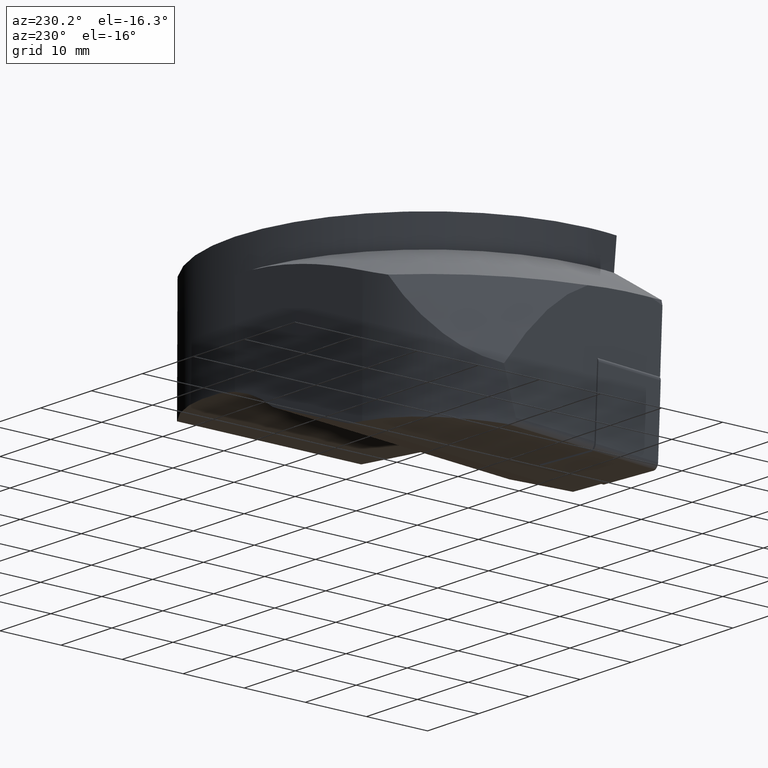
[diagram: clean part render]
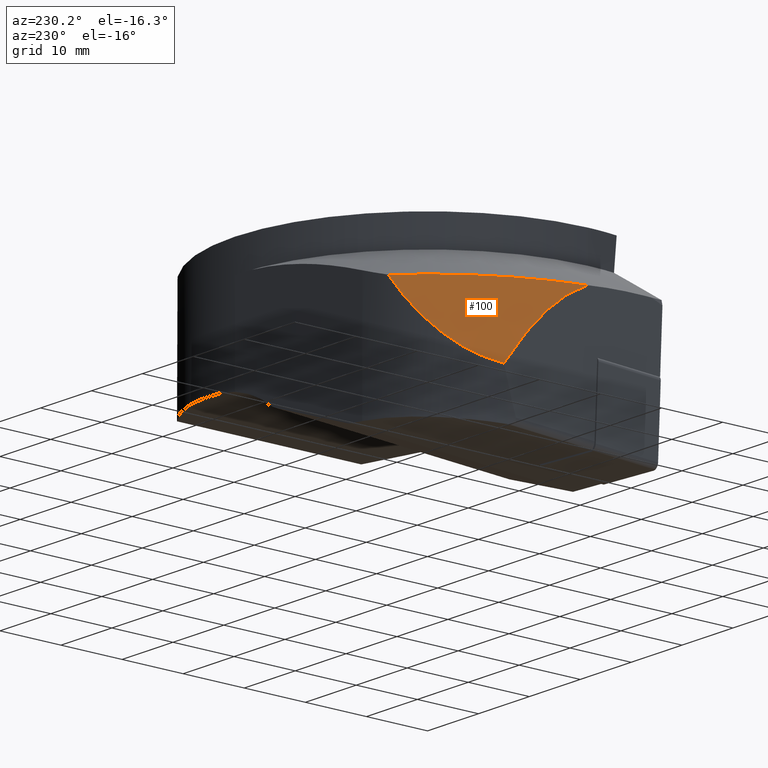
[diagram: same view with one face highlighted and labeled with its STEP entity id]
A machine part, auxiliary view. The second image highlights one B-rep face of the part: STEP entity #100.
In plain terms, the highlighted conical surface has half-angle 20 deg.
Its self-contained STEP definition (entity closure, byte-faithful):
#100=ADVANCED_FACE('',(#158),#159,.T.);
#158=FACE_OUTER_BOUND('',#222,.T.);
#159=CONICAL_SURFACE('',#223,43.4193818987798,0.349065849601138);
#222=EDGE_LOOP('',(#454,#455,#456));
#223=AXIS2_PLACEMENT_3D('',#457,#458,#459);
#454=ORIENTED_EDGE('',*,*,#546,.F.);
#455=ORIENTED_EDGE('',*,*,#583,.F.);
#456=ORIENTED_EDGE('',*,*,#569,.F.);
#457=CARTESIAN_POINT('',(0.0,3.33066907387547E-015,-13.3162244555885));
#458=DIRECTION('',(0.0,-0.0,-1.0));
#459=DIRECTION('',(0.485818585792204,0.874059667127401,0.0));
#546=EDGE_CURVE('',#660,#662,#663,.T.);
#569=EDGE_CURVE('',#662,#702,#703,.T.);
#583=EDGE_CURVE('',#702,#660,#725,.T.);
#660=VERTEX_POINT('',#827);
#662=VERTEX_POINT('',#829);
#663=(B_SPLINE_CURVE(2,(#831,#832,#833),.UNSPECIFIED.,.F.,.F.)B_SPLINE_CURVE_WITH_KNOTS((3,3),(0.001308509457713,18.9680444500576),.UNSPECIFIED.)RATIONAL_B_SPLINE_CURVE((1.00000267689721,1.01940205979572,1.00057965078299))BOUNDED_CURVE()REPRESENTATION_ITEM('')GEOMETRIC_REPRESENTATION_ITEM()CURVE());
#702=VERTEX_POINT('',#915);
#703=B_SPLINE_CURVE_WITH_KNOTS('',3,(#916,#917,#918,#919,#920,#921,#922,#923,#924,#925,#926,#927,#928,#929,#930,#931),.UNSPECIFIED.,.F.,.F.,(4,2,2,2,2,2,2,4),(26.1109510316236,27.6243507450446,29.7536378607249,31.8829249764053,35.5950819891459,39.3072390018865,43.019396014627,45.5276441190841),.UNSPECIFIED.);
#725=CIRCLE('',#970,42.7583302491977);
#827=CARTESIAN_POINT('',(-41.8750476040882,8.64610859605659,-11.5));
#829=CARTESIAN_POINT('',(-41.8201863919239,22.320412642107,-24.2635711891194));
#831=CARTESIAN_POINT('',(-41.8750476040882,8.64610859605659,-11.5));
#832=CARTESIAN_POINT('',(-41.5450705930082,15.0210800201369,-14.1538283420422));
#833=CARTESIAN_POINT('',(-41.8201863919239,22.320412642107,-24.2635711891194));
#915=CARTESIAN_POINT('',(-29.4512462150672,30.9983693454825,-11.5));
#916=CARTESIAN_POINT('',(-41.8201863919239,22.320412642107,-24.2635711891194));
#917=CARTESIAN_POINT('',(-41.5386844360627,22.7580036586318,-24.1473489734073));
#918=CARTESIAN_POINT('',(-41.2411248201253,23.1826988003321,-23.9991149772399));
#919=CARTESIAN_POINT('',(-40.4998929520124,24.1596671597686,-23.5748307826488));
#920=CARTESIAN_POINT('',(-40.0452306675594,24.6942809375487,-23.2706201639303));
#921=CARTESIAN_POINT('',(-39.1294086899895,25.6706677807837,-22.5874070547748));
#922=CARTESIAN_POINT('',(-38.6683116967142,26.1126169081332,-22.2085721524252));
#923=CARTESIAN_POINT('',(-37.4484016005857,27.1877367133264,-21.1374408521392));
#924=CARTESIAN_POINT('',(-36.6399120620046,27.7929350199541,-20.3491418322813));
#925=CARTESIAN_POINT('',(-35.0028898544862,28.8461661155331,-18.6155059005941));
#926=CARTESIAN_POINT('',(-34.1743983612639,29.2943106041819,-17.6701979705059));
#927=CARTESIAN_POINT('',(-32.5420781104469,30.0451915163858,-15.690207472594));
#928=CARTESIAN_POINT('',(-31.7380091014324,30.3481599014561,-14.6552419392213));
#929=CARTESIAN_POINT('',(-30.4446790255744,30.7523766728924,-12.907753267095));
#930=CARTESIAN_POINT('',(-29.937837116258,30.8872864200934,-12.1995750916439));
#931=CARTESIAN_POINT('',(-29.4512462150672,30.9983693454825,-11.5));
#970=AXIS2_PLACEMENT_3D('',#1119,#1120,#1121);
#1119=CARTESIAN_POINT('',(0.0,4.494702E-015,-11.5));
#1120=DIRECTION('',(0.0,0.0,1.0));
#1121=DIRECTION('',(-1.0,0.0,0.0));